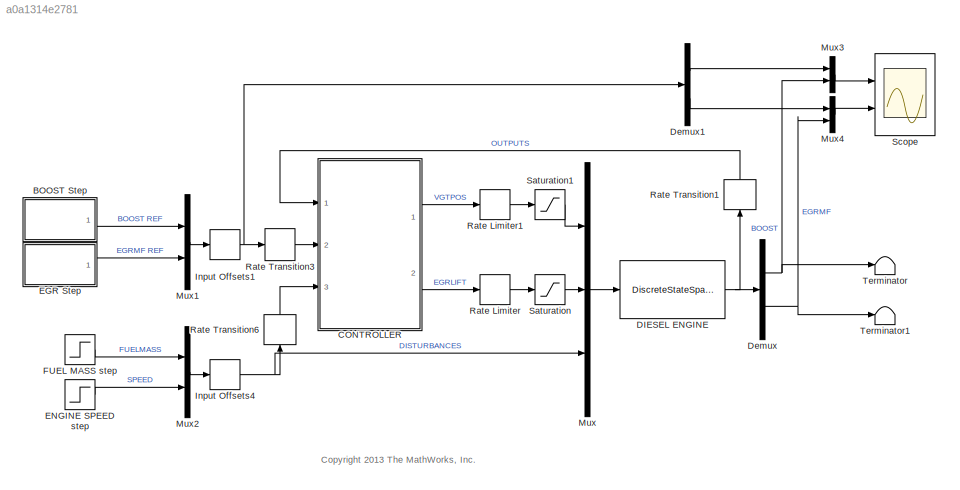
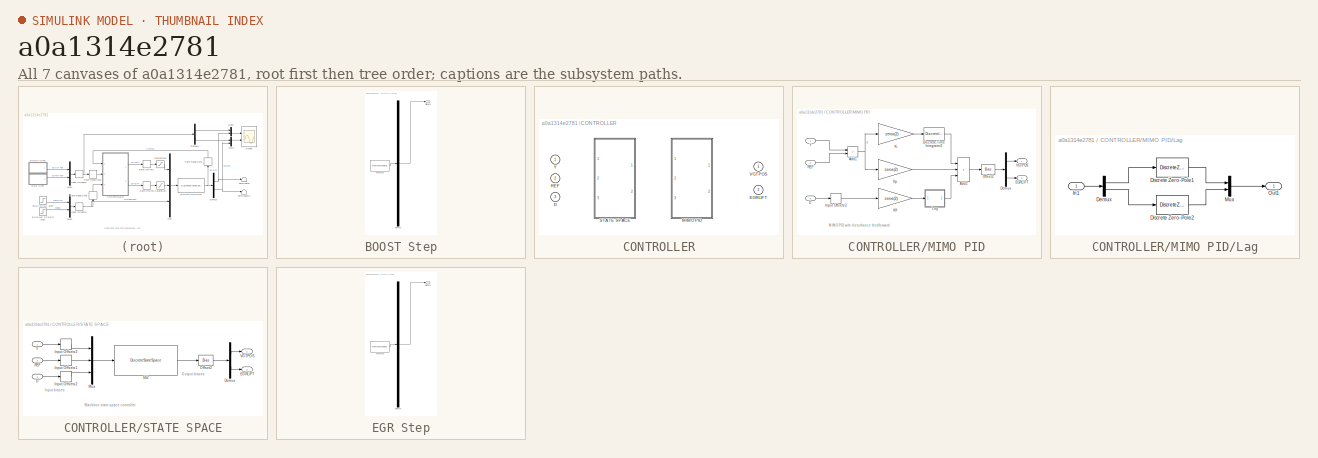
[diagram: thumbnail index - all 7 canvases of the model, root first then tree order]
MODEL slx_a0a1314e2781
KIND model
CONFIG AbsTol = auto
CONFIG EnableMultiTasking = off
CONFIG FixedStep = auto
CONFIG MaxStep = auto
CONFIG MinStep = auto
CONFIG PreLoadFcn = %% Plant model\nload DieselEngine Plant\n[a,b,c,d] = ssdata(Plant);\n\n%% Bias computation for simulation\n% Fuel  mass and engine speed at operating point\nD0 = [12;2100];\n\n% Nominal VGT and EGR positions at operating point\nU0 = [0.375;2.5];\n\n% Corresponding steady-state values of BOOST and EGR\nX0 = (eye(4)-a)\(b*[U0;D0]);\nY0 = c*X0+d*[U0;D0];\n\n% Choose State Space Controller as default variant\nMODE = ...<+2ch>
CONFIG RelTol = 1e-3
CONFIG SampleTimeConstraint = Unconstrained
CONFIG SolverName = FixedStepDiscrete
CONFIG StartTime = 0.0
CONFIG StopTime = 140
BLOCK [SubSystem] BOOST Step
  ClipboardFcn = sigbuilder_block('clipboard');
  CloseFcn = sigbuilder_block('close');
  ContinueFcn = sigbuilder_block('continue');
  CopyFcn = sigbuilder_block('copy');
  DeleteFcn = sigbuilder_block('delete');
  LoadFcn = sigbuilder_block('load');
  MaskHideContents = on
  ModelCloseFcn = sigbuilder_block('modelClose');
  NameChangeFcn = sigbuilder_block('namechange');
  OpenFcn = sigbuilder_block('open',[315 191.25 550.5 395.25 ]);
  PauseFcn = sigbuilder_block('pause');
  Ports = [0, 1]
  PreSaveFcn = sigbuilder_block('preSave');
  RequestExecContextInheritance = off
  StartFcn = sigbuilder_block('start');
  StopFcn = sigbuilder_block('stop');
  Tag = STV Subsys
BLOCK [Demux] BOOST Step/Demux
  DisplayOption = none
  Outputs = 1
  Ports = [1, 1]
  Tag = STV Demux
BLOCK [FromWorkspace] BOOST Step/FromWs
  Tag = STV FromWs
  VariableName = tuvar
BLOCK [Outport] BOOST Step/Signal 1
  Tag = STV Outport
  VectorParamsAs1DForOutWhenUnconnected = off
BLOCK [SubSystem] CONTROLLER
  Ports = [3, 2]
  RequestExecContextInheritance = off
  Variant = on
BLOCK [Inport] CONTROLLER/D
  Port = 3
BLOCK [Outport] CONTROLLER/EGRLIFT
  Port = 2
  VectorParamsAs1DForOutWhenUnconnected = off
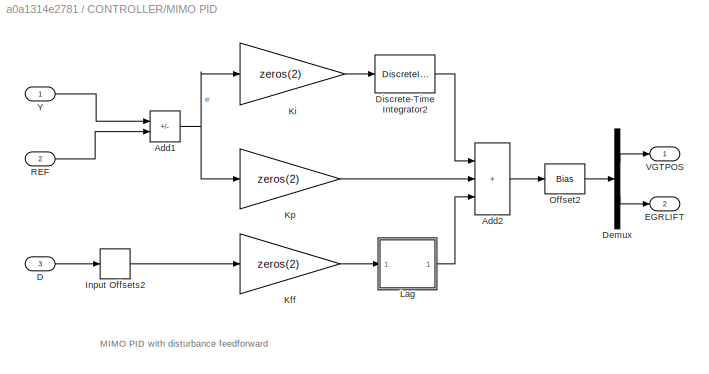
BLOCK [SubSystem] CONTROLLER/MIMO PID
  Ports = [3, 2]
  RequestExecContextInheritance = off
  VariantControl = MODE==2
BLOCK [Sum] CONTROLLER/MIMO PID/Add1
  IconShape = rectangular
  Inputs = -+
  Ports = [2, 1]
BLOCK [Sum] CONTROLLER/MIMO PID/Add2
  IconShape = rectangular
  Inputs = +++
  Ports = [3, 1]
BLOCK [Inport] CONTROLLER/MIMO PID/D
  Port = 3
BLOCK [Demux] CONTROLLER/MIMO PID/Demux
  Outputs = 2
  Ports = [1, 2]
BLOCK [DiscreteIntegrator] CONTROLLER/MIMO PID/Discrete-Time Integrator2
  ICPrevOutput = DiscIntNeverNeededParam
  ICPrevScaledInput = DiscIntNeverNeededParam
  Ports = [1, 1]
  SampleTime = 0.2
BLOCK [Outport] CONTROLLER/MIMO PID/EGRLIFT
  Port = 2
  VectorParamsAs1DForOutWhenUnconnected = off
BLOCK [Bias] CONTROLLER/MIMO PID/Input Offsets2
  Bias = -D0
  SaturateOnIntegerOverflow = off
BLOCK [Gain] CONTROLLER/MIMO PID/Kff
  Gain = zeros(2)
  Multiplication = Matrix(K*u)
BLOCK [Gain] CONTROLLER/MIMO PID/Ki
  Gain = zeros(2)
  Multiplication = Matrix(K*u)
BLOCK [Gain] CONTROLLER/MIMO PID/Kp
  Gain = zeros(2)
  Multiplication = Matrix(K*u)
BLOCK [SubSystem] CONTROLLER/MIMO PID/Lag
  Ports = [1, 1]
  RequestExecContextInheritance = off
BLOCK [Demux] CONTROLLER/MIMO PID/Lag/Demux
  Outputs = 2
  Ports = [1, 2]
BLOCK [DiscreteZeroPole] CONTROLLER/MIMO PID/Lag/Discrete Zero-Pole1
  Gain = 1
  Poles = 0.9993
  SampleTime = 0.2
  Zeros = 0.9975
BLOCK [DiscreteZeroPole] CONTROLLER/MIMO PID/Lag/Discrete Zero-Pole2
  Gain = 1
  Poles = 0.9993
  SampleTime = 0.2
  Zeros = 0.9975
BLOCK [Inport] CONTROLLER/MIMO PID/Lag/In1
BLOCK [Mux] CONTROLLER/MIMO PID/Lag/Mux
  DisplayOption = bar
  Inputs = 2
  Ports = [2, 1]
BLOCK [Outport] CONTROLLER/MIMO PID/Lag/Out1
  VectorParamsAs1DForOutWhenUnconnected = off
BLOCK [Bias] CONTROLLER/MIMO PID/Offset2
  Bias = U0
  SaturateOnIntegerOverflow = off
BLOCK [Inport] CONTROLLER/MIMO PID/REF
  Port = 2
BLOCK [Outport] CONTROLLER/MIMO PID/VGTPOS
  VectorParamsAs1DForOutWhenUnconnected = off
BLOCK [Inport] CONTROLLER/MIMO PID/Y
BLOCK [Inport] CONTROLLER/REF
  Port = 2
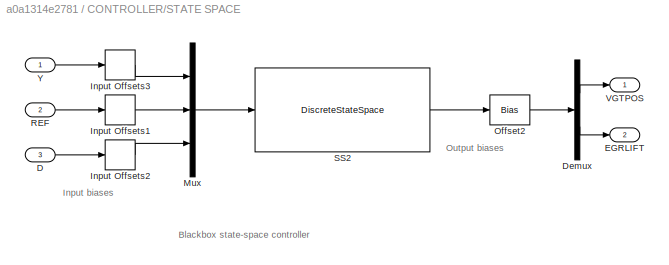
BLOCK [SubSystem] CONTROLLER/STATE SPACE
  Ports = [3, 2]
  RequestExecContextInheritance = off
  VariantControl = MODE==1
BLOCK [Inport] CONTROLLER/STATE SPACE/D
  Port = 3
BLOCK [Demux] CONTROLLER/STATE SPACE/Demux
  Outputs = 2
  Ports = [1, 2]
BLOCK [Outport] CONTROLLER/STATE SPACE/EGRLIFT
  Port = 2
  VectorParamsAs1DForOutWhenUnconnected = off
BLOCK [Bias] CONTROLLER/STATE SPACE/Input Offsets1
  Bias = -Y0
  SaturateOnIntegerOverflow = off
BLOCK [Bias] CONTROLLER/STATE SPACE/Input Offsets2
  Bias = -D0
  SaturateOnIntegerOverflow = off
BLOCK [Bias] CONTROLLER/STATE SPACE/Input Offsets3
  Bias = -Y0
  SaturateOnIntegerOverflow = off
BLOCK [Mux] CONTROLLER/STATE SPACE/Mux
  DisplayOption = bar
  Inputs = 3
  Ports = [3, 1]
BLOCK [Bias] CONTROLLER/STATE SPACE/Offset2
  Bias = U0
  SaturateOnIntegerOverflow = off
BLOCK [Inport] CONTROLLER/STATE SPACE/REF
  Port = 2
BLOCK [DiscreteStateSpace] CONTROLLER/STATE SPACE/SS2
  A = 0.9*eye(2)
  B = ones(2,6)
  C = zeros(2,2)
  D = zeros(2,6)
  SampleTime = 0.2
BLOCK [Outport] CONTROLLER/STATE SPACE/VGTPOS
  VectorParamsAs1DForOutWhenUnconnected = off
BLOCK [Inport] CONTROLLER/STATE SPACE/Y
BLOCK [Outport] CONTROLLER/VGTPOS
  VectorParamsAs1DForOutWhenUnconnected = off
BLOCK [Inport] CONTROLLER/Y
BLOCK [DiscreteStateSpace] DIESEL ENGINE
  A = Plant.a
  B = Plant.b
  C = Plant.c
  D = Plant.d
  InitialCondition = X0
  SampleTime = Plant.Ts
BLOCK [Demux] Demux
  Outputs = 2
  Ports = [1, 2]
BLOCK [Demux] Demux1
  Outputs = 2
  Ports = [1, 2]
BLOCK [SubSystem] EGR Step
  ClipboardFcn = sigbuilder_block('clipboard');
  CloseFcn = sigbuilder_block('close');
  ContinueFcn = sigbuilder_block('continue');
  CopyFcn = sigbuilder_block('copy');
  DeleteFcn = sigbuilder_block('delete');
  LoadFcn = sigbuilder_block('load');
  MaskHideContents = on
  ModelCloseFcn = sigbuilder_block('modelClose');
  NameChangeFcn = sigbuilder_block('namechange');
  OpenFcn = sigbuilder_block('open',[403.5 199.5 550.5 395.25 ]);
  PauseFcn = sigbuilder_block('pause');
  Ports = [0, 1]
  PreSaveFcn = sigbuilder_block('preSave');
  RequestExecContextInheritance = off
  StartFcn = sigbuilder_block('start');
  StopFcn = sigbuilder_block('stop');
  Tag = STV Subsys
BLOCK [Demux] EGR Step/Demux
  DisplayOption = none
  Outputs = 1
  Ports = [1, 1]
  Tag = STV Demux
BLOCK [FromWorkspace] EGR Step/FromWs
  Tag = STV FromWs
  VariableName = tuvar
BLOCK [Outport] EGR Step/Signal 1
  Tag = STV Outport
  VectorParamsAs1DForOutWhenUnconnected = off
BLOCK [Step] ENGINE SPEED step
  After = -200
  SampleTime = 0
  Time = 110
BLOCK [Step] FUEL MASS step
  After = 5
  SampleTime = 0
  Time = 90
BLOCK [Bias] Input Offsets1
  Bias = Y0
  SaturateOnIntegerOverflow = off
BLOCK [Bias] Input Offsets4
  Bias = D0
  SaturateOnIntegerOverflow = off
BLOCK [Mux] Mux
  DisplayOption = bar
  Inputs = 3
  Ports = [3, 1]
BLOCK [Mux] Mux1
  DisplayOption = bar
  Inputs = 2
  Ports = [2, 1]
BLOCK [Mux] Mux2
  DisplayOption = bar
  Inputs = 2
  Ports = [2, 1]
BLOCK [Mux] Mux3
  DisplayOption = bar
  Inputs = 2
  Ports = [2, 1]
BLOCK [Mux] Mux4
  DisplayOption = bar
  Inputs = 2
  Ports = [2, 1]
BLOCK [RateLimiter] Rate Limiter
  FallingSlewLimit = -5
  InitialCondition = -1
  RisingSlewLimit = 5
  SampleTimeMode = inherited
BLOCK [RateLimiter] Rate Limiter1
  FallingSlewLimit = -0.9
  RisingSlewLimit = 0.9
  SampleTimeMode = inherited
BLOCK [RateTransition] Rate Transition1
  NameLocation = right
  OutPortSampleTime = 0.2
BLOCK [RateTransition] Rate Transition3
  OutPortSampleTime = 0.2
BLOCK [RateTransition] Rate Transition6
  NameLocation = right
  OutPortSampleTime = 0.2
BLOCK [Saturate] Saturation
  LowerLimit = 0
  UpperLimit = 5
BLOCK [Saturate] Saturation1
  LowerLimit = 0
  UpperLimit = 1
BLOCK [Scope] Scope
  Floating = off
  NumInputPorts = 2
  Ports = [2]
  ScopeSpecificationString = Simulink.scopes.TimeScopeBlockCfg('CurrentConfiguration', extmgr.ConfigurationSet(extmgr.Configuration('Core','General UI',true,'MessageLogAutoOpenMode','for warn/fail messages','ShowCloseAll',true,'ShowBringAllForward',true),extmgr.Configuration('Core','Source UI',true,'PlaybackToolbar',true),extmgr.Configuration('Sources','WiredSimulink',true,'PointsPerSignal',50000,'DataLoggingVariableName','Sc...<+2626ch>
BLOCK [Terminator] Terminator
BLOCK [Terminator] Terminator1
ANNOTATION (root): <copyright redacted>
ANNOTATION CONTROLLER/MIMO PID: MIMO PID with disturbance feedforward
ANNOTATION CONTROLLER/STATE SPACE: Blackbox state-space controller
ANNOTATION CONTROLLER/STATE SPACE: Input biases
ANNOTATION CONTROLLER/STATE SPACE: Output biases
LINE BOOST Step:1 -> Mux1:1
NET CONTROLLER/MIMO PID/Add1:1 -> CONTROLLER/MIMO PID/Ki:1, CONTROLLER/MIMO PID/Kp:1
LINE CONTROLLER/MIMO PID/Add2:1 -> CONTROLLER/MIMO PID/Offset2:1
LINE CONTROLLER/MIMO PID/D:1 -> CONTROLLER/MIMO PID/Input Offsets2:1
LINE CONTROLLER/MIMO PID/Demux:1 -> CONTROLLER/MIMO PID/VGTPOS:1
LINE CONTROLLER/MIMO PID/Demux:2 -> CONTROLLER/MIMO PID/EGRLIFT:1
LINE CONTROLLER/MIMO PID/Discrete-Time Integrator2:1 -> CONTROLLER/MIMO PID/Add2:1
LINE CONTROLLER/MIMO PID/Input Offsets2:1 -> CONTROLLER/MIMO PID/Kff:1
LINE CONTROLLER/MIMO PID/Kff:1 -> CONTROLLER/MIMO PID/Lag:1
LINE CONTROLLER/MIMO PID/Ki:1 -> CONTROLLER/MIMO PID/Discrete-Time Integrator2:1
LINE CONTROLLER/MIMO PID/Kp:1 -> CONTROLLER/MIMO PID/Add2:2
LINE CONTROLLER/MIMO PID/Lag/Demux:1 -> CONTROLLER/MIMO PID/Lag/Discrete Zero-Pole1:1
LINE CONTROLLER/MIMO PID/Lag/Demux:2 -> CONTROLLER/MIMO PID/Lag/Discrete Zero-Pole2:1
LINE CONTROLLER/MIMO PID/Lag/Discrete Zero-Pole1:1 -> CONTROLLER/MIMO PID/Lag/Mux:1
LINE CONTROLLER/MIMO PID/Lag/Discrete Zero-Pole2:1 -> CONTROLLER/MIMO PID/Lag/Mux:2
LINE CONTROLLER/MIMO PID/Lag/In1:1 -> CONTROLLER/MIMO PID/Lag/Demux:1
LINE CONTROLLER/MIMO PID/Lag/Mux:1 -> CONTROLLER/MIMO PID/Lag/Out1:1
LINE CONTROLLER/MIMO PID/Lag:1 -> CONTROLLER/MIMO PID/Add2:3
LINE CONTROLLER/MIMO PID/Offset2:1 -> CONTROLLER/MIMO PID/Demux:1
LINE CONTROLLER/MIMO PID/REF:1 -> CONTROLLER/MIMO PID/Add1:2
LINE CONTROLLER/MIMO PID/Y:1 -> CONTROLLER/MIMO PID/Add1:1
LINE CONTROLLER/STATE SPACE/D:1 -> CONTROLLER/STATE SPACE/Input Offsets2:1
LINE CONTROLLER/STATE SPACE/Demux:1 -> CONTROLLER/STATE SPACE/VGTPOS:1
LINE CONTROLLER/STATE SPACE/Demux:2 -> CONTROLLER/STATE SPACE/EGRLIFT:1
LINE CONTROLLER/STATE SPACE/Input Offsets1:1 -> CONTROLLER/STATE SPACE/Mux:2
LINE CONTROLLER/STATE SPACE/Input Offsets2:1 -> CONTROLLER/STATE SPACE/Mux:3
LINE CONTROLLER/STATE SPACE/Input Offsets3:1 -> CONTROLLER/STATE SPACE/Mux:1
LINE CONTROLLER/STATE SPACE/Mux:1 -> CONTROLLER/STATE SPACE/SS2:1
LINE CONTROLLER/STATE SPACE/Offset2:1 -> CONTROLLER/STATE SPACE/Demux:1
LINE CONTROLLER/STATE SPACE/REF:1 -> CONTROLLER/STATE SPACE/Input Offsets1:1
LINE CONTROLLER/STATE SPACE/SS2:1 -> CONTROLLER/STATE SPACE/Offset2:1
LINE CONTROLLER/STATE SPACE/Y:1 -> CONTROLLER/STATE SPACE/Input Offsets3:1
LINE CONTROLLER:1 -> Rate Limiter1:1
LINE CONTROLLER:2 -> Rate Limiter:1
NET DIESEL ENGINE:1 -> Demux:1, Rate Transition1:1
LINE Demux1:1 -> Mux3:1
LINE Demux1:2 -> Mux4:1
NET Demux:1 -> Mux3:2, Terminator:1
NET Demux:2 -> Mux4:2, Terminator1:1
LINE EGR Step:1 -> Mux1:2
LINE ENGINE SPEED step:1 -> Mux2:2
LINE FUEL MASS step:1 -> Mux2:1
NET Input Offsets1:1 -> Demux1:1, Rate Transition3:1
NET Input Offsets4:1 -> Mux:3, Rate Transition6:1
LINE Mux1:1 -> Input Offsets1:1
LINE Mux2:1 -> Input Offsets4:1
LINE Mux3:1 -> Scope:1
LINE Mux4:1 -> Scope:2
LINE Mux:1 -> DIESEL ENGINE:1
LINE Rate Limiter1:1 -> Saturation1:1
LINE Rate Limiter:1 -> Saturation:1
LINE Rate Transition1:1 -> CONTROLLER:1
LINE Rate Transition3:1 -> CONTROLLER:2
LINE Rate Transition6:1 -> CONTROLLER:3
LINE Saturation1:1 -> Mux:1
LINE Saturation:1 -> Mux:2
note: NET lines group one-source signal fan-out (src -> all destinations, sorted); 1:1 wires keep LINE
